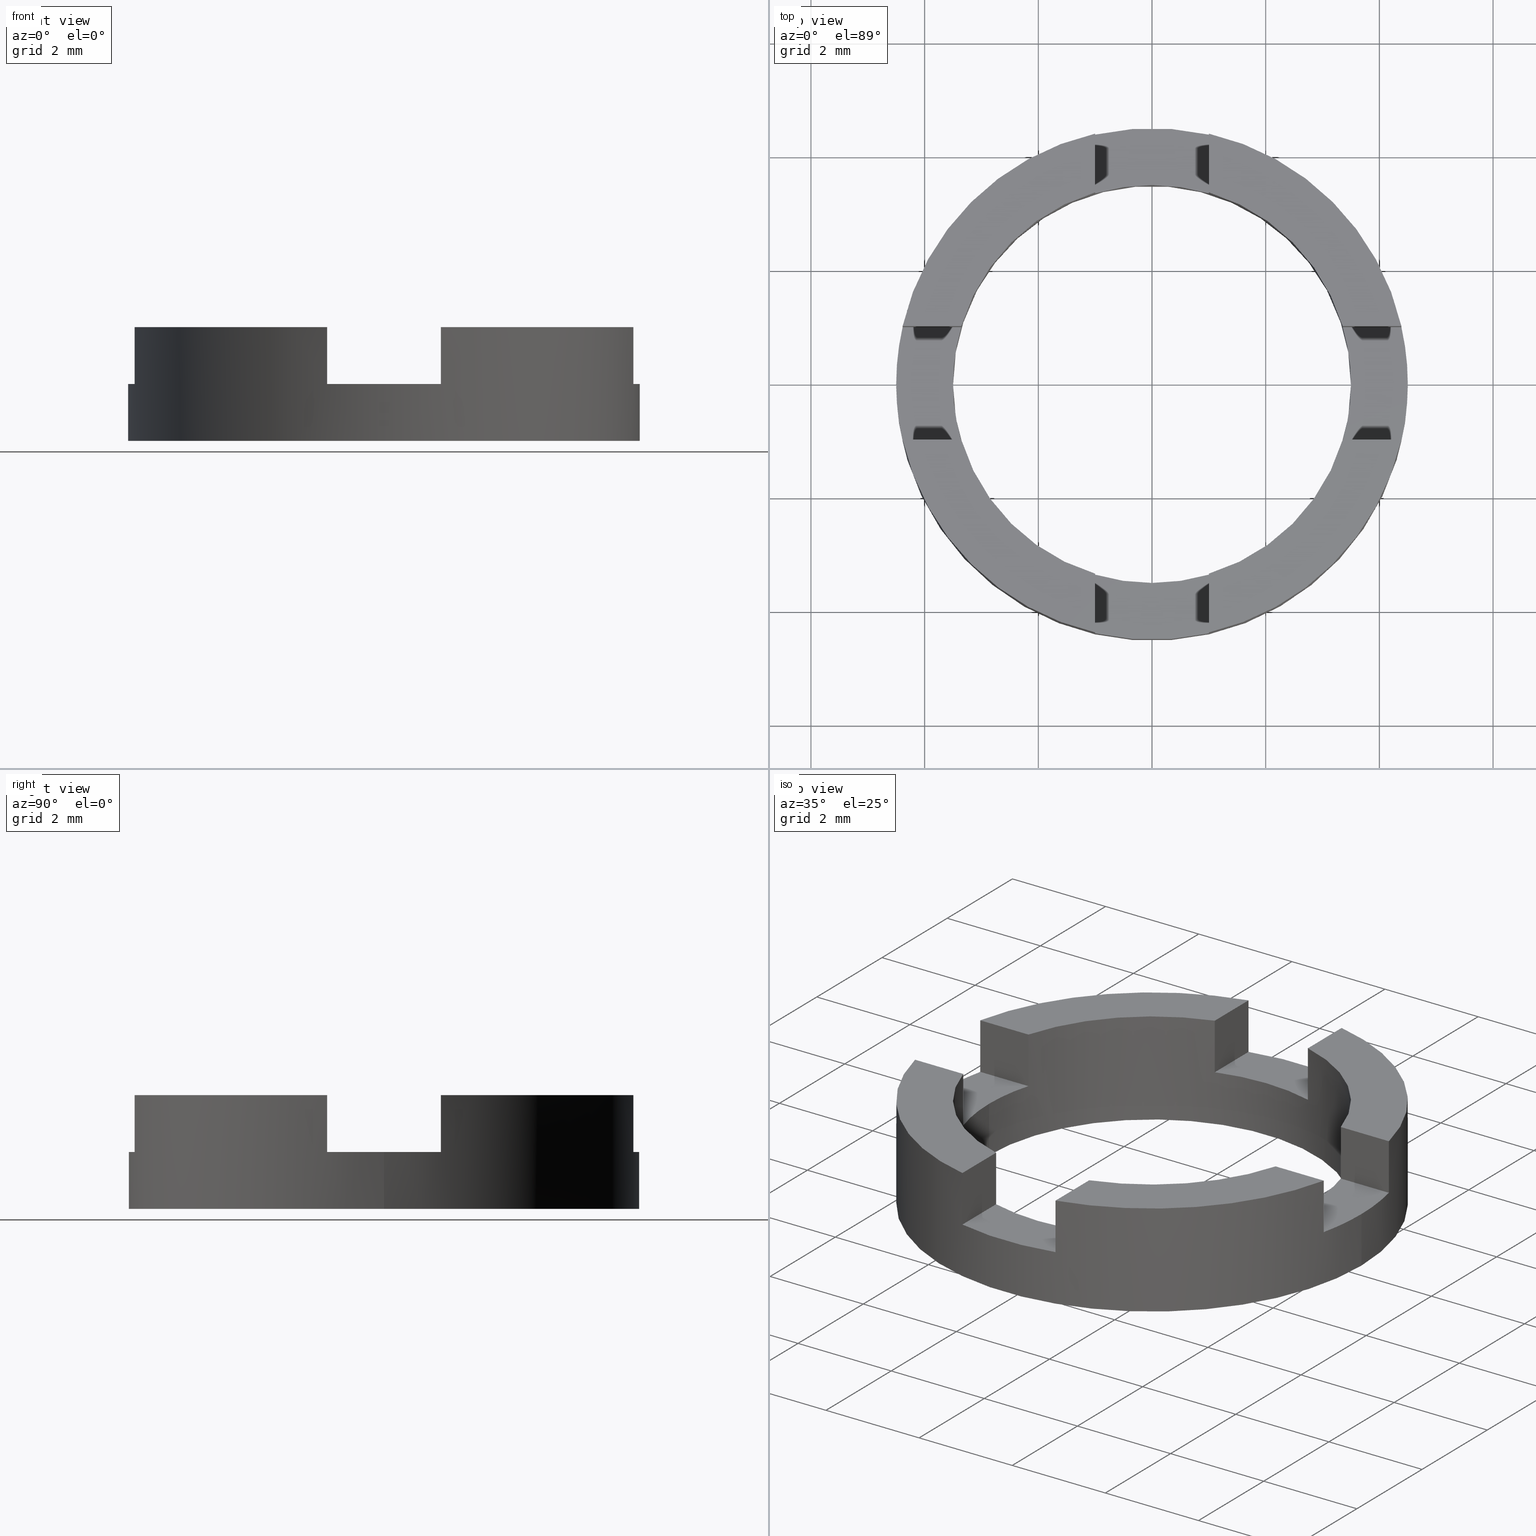
[diagram: canonical four-view strip — front | top / right | iso, engineering-drawing reading convention]
A machine part, canonical four-view strip (front | top / right | iso — engineering-drawing reading convention). The complete STEP part file that produces these views, byte-faithful:
ISO-10303-21;
HEADER;
FILE_DESCRIPTION (( 'STEP AP203' ),
    '1' );
FILE_NAME ('514024.step',
    '2024-12-24T07:07:19',
    ( '' ),
    ( '' ),
    'SwSTEP 2.0',
    'SolidWorks 2020',
    '' );
FILE_SCHEMA (( 'CONFIG_CONTROL_DESIGN' ));
ENDSEC;

DATA;
#1 = AXIS2_PLACEMENT_3D ( 'NONE', #775, #534, #224 ) ;
#2 = CARTESIAN_POINT ( 'NONE',  ( 0.000000000000000000, 0.000000000000000000, 1.000000000000000000 ) ) ;
#3 = DIRECTION ( 'NONE',  ( 0.000000000000000000, 0.000000000000000000, 1.000000000000000000 ) ) ;
#4 = APPROVAL ( #516, 'δָ��' ) ;
#5 = CARTESIAN_POINT ( 'NONE',  ( 3.354101966249671385, 1.000000000000045297, 2.000000000000000000 ) ) ;
#6 = ORIENTED_EDGE ( 'NONE', *, *, #497, .F. ) ;
#7 = CARTESIAN_POINT ( 'NONE',  ( 0.000000000000000000, 0.000000000000000000, 0.000000000000000000 ) ) ;
#8 = DIRECTION ( 'NONE',  ( 0.000000000000000000, 0.000000000000000000, 1.000000000000000000 ) ) ;
#9 = ORIENTED_EDGE ( 'NONE', *, *, #270, .T. ) ;
#10 = CIRCLE ( 'NONE', #609, 4.500000000000000000 ) ;
#11 = DIRECTION ( 'NONE',  ( 2.558646401551673950E-16, -1.000000000000000000, 0.000000000000000000 ) ) ;
#12 = ORIENTED_EDGE ( 'NONE', *, *, #728, .T. ) ;
#13 = DIRECTION ( 'NONE',  ( 1.000000000000000000, 0.000000000000000000, 0.000000000000000000 ) ) ;
#14 = CARTESIAN_POINT ( 'NONE',  ( -3.354101966249774858, 0.9999999999996977973, 2.000000000000000000 ) ) ;
#15 = ORIENTED_EDGE ( 'NONE', *, *, #717, .F. ) ;
#16 = EDGE_CURVE ( 'NONE', #642, #689, #493, .T. ) ;
#17 = COORDINATED_UNIVERSAL_TIME_OFFSET ( 8, 0, .AHEAD. ) ;
#18 = CARTESIAN_POINT ( 'NONE',  ( 4.387482193696071064, -0.9999999999999544809, 1.000000000000000000 ) ) ;
#19 = DIRECTION ( 'NONE',  ( -1.000000000000000000, -2.558646401551675429E-16, 0.000000000000000000 ) ) ;
#20 = ORIENTED_EDGE ( 'NONE', *, *, #303, .F. ) ;
#21 = DATE_AND_TIME ( #206, #110 ) ;
#22 = AXIS2_PLACEMENT_3D ( 'NONE', #163, #533, #231 ) ;
#23 = AXIS2_PLACEMENT_3D ( 'NONE', #72, #66, #244 ) ;
#24 = VERTEX_POINT ( 'NONE', #235 ) ;
#25 = EDGE_CURVE ( 'NONE', #383, #689, #608, .T. ) ;
#26 = DIRECTION ( 'NONE',  ( -1.000000000000000000, 0.000000000000000000, 0.000000000000000000 ) ) ;
#27 = ORIENTED_EDGE ( 'NONE', *, *, #220, .T. ) ;
#28 = EDGE_LOOP ( 'NONE', ( #584, #370, #783, #381, #400, #15 ) ) ;
#29 = LINE ( 'NONE', #154, #721 ) ;
#30 = ORIENTED_EDGE ( 'NONE', *, *, #181, .F. ) ;
#31 = VERTEX_POINT ( 'NONE', #51 ) ;
#32 = CARTESIAN_POINT ( 'NONE',  ( 2.805037895306198958, 1.000000000000045297, 1.000000000000000000 ) ) ;
#33 = DIRECTION ( 'NONE',  ( -1.000000000000000000, 0.000000000000000000, 0.000000000000000000 ) ) ;
#34 = ADVANCED_FACE ( 'NONE', ( #725 ), #420, .F. ) ;
#35 = ORIENTED_EDGE ( 'NONE', *, *, #243, .F. ) ;
#36 = AXIS2_PLACEMENT_3D ( 'NONE', #592, #166, #656 ) ;
#37 = CIRCLE ( 'NONE', #395, 3.500000000000000000 ) ;
#38 = DIRECTION ( 'NONE',  ( -1.000000000000000000, 0.000000000000000000, 0.000000000000000000 ) ) ;
#39 = DIRECTION ( 'NONE',  ( 0.000000000000000000, 1.000000000000000000, 0.000000000000000000 ) ) ;
#40 = DIRECTION ( 'NONE',  ( 0.000000000000000000, 0.000000000000000000, 1.000000000000000000 ) ) ;
#41 = DIRECTION ( 'NONE',  ( -1.279323200775837468E-16, 1.000000000000000000, -0.000000000000000000 ) ) ;
#42 = ORIENTED_EDGE ( 'NONE', *, *, #590, .F. ) ;
#43 = CARTESIAN_POINT ( 'NONE',  ( 0.000000000000000000, 0.000000000000000000, 1.000000000000000000 ) ) ;
#44 = ADVANCED_FACE ( 'NONE', ( #295 ), #716, .T. ) ;
#45 = FACE_OUTER_BOUND ( 'NONE', #217, .T. ) ;
#46 = VECTOR ( 'NONE', #294, 1000.000000000000000 ) ;
#47 = VECTOR ( 'NONE', #97, 1000.000000000000000 ) ;
#48 = DIRECTION ( 'NONE',  ( -0.000000000000000000, -0.000000000000000000, -1.000000000000000000 ) ) ;
#49 = EDGE_CURVE ( 'NONE', #704, #588, #664, .T. ) ;
#50 = EDGE_CURVE ( 'NONE', #302, #504, #117, .T. ) ;
#51 = CARTESIAN_POINT ( 'NONE',  ( 1.000000000000347278, -3.354101966249581235, 1.000000000000000000 ) ) ;
#52 = CARTESIAN_POINT ( 'NONE',  ( 3.354101966249671385, 1.000000000000045297, 1.000000000000000000 ) ) ;
#53 = DIRECTION ( 'NONE',  ( 0.000000000000000000, 0.000000000000000000, 1.000000000000000000 ) ) ;
#54 = DIRECTION ( 'NONE',  ( 0.000000000000000000, 0.000000000000000000, 1.000000000000000000 ) ) ;
#55 = CC_DESIGN_PERSON_AND_ORGANIZATION_ASSIGNMENT ( #566, #200, ( #487 ) ) ;
#56 = CARTESIAN_POINT ( 'NONE',  ( 3.354101966249698030, -0.9999999999999547029, 2.000000000000000000 ) ) ;
#57 = VECTOR ( 'NONE', #423, 1000.000000000000000 ) ;
#58 = VECTOR ( 'NONE', #369, 1000.000000000000000 ) ;
#59 = VECTOR ( 'NONE', #481, 1000.000000000000000 ) ;
#60 = DIRECTION ( 'NONE',  ( -1.000000000000000000, 0.000000000000000000, 0.000000000000000000 ) ) ;
#61 = EDGE_LOOP ( 'NONE', ( #149, #752, #500, #83 ) ) ;
#62 = DIRECTION ( 'NONE',  ( -0.000000000000000000, -0.000000000000000000, -1.000000000000000000 ) ) ;
#63 = CARTESIAN_POINT ( 'NONE',  ( -3.354101966249594557, -1.000000000000302203, 2.000000000000000000 ) ) ;
#64 = VERTEX_POINT ( 'NONE', #780 ) ;
#65 = EDGE_CURVE ( 'NONE', #363, #228, #233, .T. ) ;
#66 = DIRECTION ( 'NONE',  ( 0.000000000000000000, -0.000000000000000000, 1.000000000000000000 ) ) ;
#67 = PLANE ( 'NONE',  #280 ) ;
#68 = ORIENTED_EDGE ( 'NONE', *, *, #512, .T. ) ;
#69 = APPROVAL_ROLE ( '' ) ;
#70 = AXIS2_PLACEMENT_3D ( 'NONE', #305, #431, #503 ) ;
#71 = CC_DESIGN_APPROVAL ( #140, ( #487 ) ) ;
#72 = CARTESIAN_POINT ( 'NONE',  ( 0.000000000000000000, 0.000000000000000000, 1.000000000000000000 ) ) ;
#73 = DIRECTION ( 'NONE',  ( 0.000000000000000000, 0.000000000000000000, -1.000000000000000000 ) ) ;
#74 = VERTEX_POINT ( 'NONE', #540 ) ;
#75 = EDGE_CURVE ( 'NONE', #128, #678, #777, .T. ) ;
#76 = DIRECTION ( 'NONE',  ( 0.000000000000000000, 0.000000000000000000, 1.000000000000000000 ) ) ;
#77 = DIRECTION ( 'NONE',  ( 1.000000000000000000, 2.558646401551673950E-16, -0.000000000000000000 ) ) ;
#78 = VERTEX_POINT ( 'NONE', #119 ) ;
#79 = CARTESIAN_POINT ( 'NONE',  ( -0.9999999999996526112, -4.387482193696139454, 1.000000000000000000 ) ) ;
#80 = ORIENTED_EDGE ( 'NONE', *, *, #680, .T. ) ;
#81 = PERSON_AND_ORGANIZATION ( #241, #249 ) ;
#82 = EDGE_CURVE ( 'NONE', #412, #275, #720, .T. ) ;
#83 = ORIENTED_EDGE ( 'NONE', *, *, #757, .F. ) ;
#84 = CC_DESIGN_DATE_AND_TIME_ASSIGNMENT ( #455, #690, ( #660 ) ) ;
#85 = CYLINDRICAL_SURFACE ( 'NONE', #700, 4.500000000000000000 ) ;
#86 = ORIENTED_EDGE ( 'NONE', *, *, #705, .T. ) ;
#87 = DATE_TIME_ROLE ( 'creation_date' ) ;
#88 = VECTOR ( 'NONE', #778, 1000.000000000000000 ) ;
#89 = ORIENTED_EDGE ( 'NONE', *, *, #292, .T. ) ;
#90 = PLANE ( 'NONE',  #472 ) ;
#91 = ORIENTED_EDGE ( 'NONE', *, *, #562, .F. ) ;
#92 = ORIENTED_EDGE ( 'NONE', *, *, #65, .F. ) ;
#93 = CARTESIAN_POINT ( 'NONE',  ( 0.000000000000000000, 0.000000000000000000, 1.000000000000000000 ) ) ;
#94 = DIRECTION ( 'NONE',  ( 1.000000000000000000, 0.000000000000000000, -0.000000000000000000 ) ) ;
#95 = ORIENTED_EDGE ( 'NONE', *, *, #739, .F. ) ;
#96 = ORIENTED_EDGE ( 'NONE', *, *, #277, .T. ) ;
#97 = DIRECTION ( 'NONE',  ( 0.000000000000000000, 0.000000000000000000, 1.000000000000000000 ) ) ;
#98 = DIRECTION ( 'NONE',  ( 0.000000000000000000, 0.000000000000000000, 1.000000000000000000 ) ) ;
#99 = VECTOR ( 'NONE', #603, 1000.000000000000000 ) ;
#100 = AXIS2_PLACEMENT_3D ( 'NONE', #654, #713, #771 ) ;
#101 = LINE ( 'NONE', #585, #367 ) ;
#102 = CARTESIAN_POINT ( 'NONE',  ( 1.000000000000000222, 3.354101966249684708, 1.000000000000000000 ) ) ;
#103 = EDGE_CURVE ( 'NONE', #24, #574, #113, .T. ) ;
#104 = LINE ( 'NONE', #600, #538 ) ;
#105 = ADVANCED_FACE ( 'NONE', ( #45 ), #171, .F. ) ;
#106 = DIRECTION ( 'NONE',  ( 1.000000000000000000, 0.000000000000000000, 0.000000000000000000 ) ) ;
#107 = DIRECTION ( 'NONE',  ( 0.000000000000000000, 0.000000000000000000, -1.000000000000000000 ) ) ;
#108 = CARTESIAN_POINT ( 'NONE',  ( -4.500000000000000000, 0.000000000000000000, 2.000000000000000000 ) ) ;
#109 = CIRCLE ( 'NONE', #22, 4.500000000000000000 ) ;
#110 = LOCAL_TIME ( 15, 7, 19.00000000000000000, #758 ) ;
#111 = FACE_OUTER_BOUND ( 'NONE', #373, .T. ) ;
#112 = DIRECTION ( 'NONE',  ( -1.000000000000000000, 0.000000000000000000, -0.000000000000000000 ) ) ;
#113 = LINE ( 'NONE', #108, #747 ) ;
#114 = ADVANCED_FACE ( 'NONE', ( #662 ), #606, .F. ) ;
#115 = CC_DESIGN_PERSON_AND_ORGANIZATION_ASSIGNMENT ( #676, #433, ( #660 ) ) ;
#116 = CARTESIAN_POINT ( 'NONE',  ( -4.387482193696129684, 0.9999999999996975752, 2.000000000000000000 ) ) ;
#117 = LINE ( 'NONE', #543, #425 ) ;
#118 = DIRECTION ( 'NONE',  ( 0.000000000000000000, -0.000000000000000000, -1.000000000000000000 ) ) ;
#119 = CARTESIAN_POINT ( 'NONE',  ( 3.500000000000000000, 4.286263797015736595E-16, 1.000000000000000000 ) ) ;
#120 = CIRCLE ( 'NONE', #774, 4.500000000000000000 ) ;
#121 = CIRCLE ( 'NONE', #237, 4.500000000000000000 ) ;
#122 = CARTESIAN_POINT ( 'NONE',  ( 3.354101966249698030, -0.9999999999999547029, 1.000000000000000000 ) ) ;
#123 = FACE_OUTER_BOUND ( 'NONE', #61, .T. ) ;
#124 = ORIENTED_EDGE ( 'NONE', *, *, #477, .F. ) ;
#125 = ADVANCED_FACE ( 'NONE', ( #615 ), #567, .T. ) ;
#126 = DIRECTION ( 'NONE',  ( -1.000000000000000000, 0.000000000000000000, 0.000000000000000000 ) ) ;
#127 = LINE ( 'NONE', #440, #162 ) ;
#128 = VERTEX_POINT ( 'NONE', #18 ) ;
#129 = CARTESIAN_POINT ( 'NONE',  ( 3.500000000000000000, 4.286263797015736595E-16, 0.000000000000000000 ) ) ;
#130 = EDGE_CURVE ( 'NONE', #265, #745, #564, .T. ) ;
#131 = DIRECTION ( 'NONE',  ( -0.000000000000000000, -1.000000000000000000, -0.000000000000000000 ) ) ;
#132 = ORIENTED_EDGE ( 'NONE', *, *, #698, .T. ) ;
#133 = DATE_AND_TIME ( #266, #281 ) ;
#134 = CIRCLE ( 'NONE', #366, 3.500000000000000000 ) ;
#135 = AXIS2_PLACEMENT_3D ( 'NONE', #726, #435, #126 ) ;
#136 = CARTESIAN_POINT ( 'NONE',  ( 0.000000000000000000, 0.000000000000000000, 2.000000000000000000 ) ) ;
#137 = ORIENTED_EDGE ( 'NONE', *, *, #781, .T. ) ;
#138 = CARTESIAN_POINT ( 'NONE',  ( -4.387482193696129684, 0.9999999999996975752, 1.000000000000000000 ) ) ;
#139 = ORIENTED_EDGE ( 'NONE', *, *, #390, .T. ) ;
#140 = APPROVAL ( #326, 'δָ��' ) ;
#141 = PERSON_AND_ORGANIZATION ( #241, #249 ) ;
#142 = CARTESIAN_POINT ( 'NONE',  ( -0.9999999999999997780, 2.805037895305896978, 1.000000000000000000 ) ) ;
#143 = ORIENTED_EDGE ( 'NONE', *, *, #776, .F. ) ;
#144 = FACE_OUTER_BOUND ( 'NONE', #448, .T. ) ;
#145 = ORIENTED_EDGE ( 'NONE', *, *, #553, .F. ) ;
#146 = COORDINATED_UNIVERSAL_TIME_OFFSET ( 8, 0, .AHEAD. ) ;
#147 = ORIENTED_EDGE ( 'NONE', *, *, #626, .F. ) ;
#148 = CARTESIAN_POINT ( 'NONE',  ( 0.000000000000000000, 0.000000000000000000, 2.000000000000000000 ) ) ;
#149 = ORIENTED_EDGE ( 'NONE', *, *, #590, .T. ) ;
#150 = AXIS2_PLACEMENT_3D ( 'NONE', #339, #760, #663 ) ;
#151 = AXIS2_PLACEMENT_3D ( 'NONE', #240, #490, #13 ) ;
#152 = ORIENTED_EDGE ( 'NONE', *, *, #717, .T. ) ;
#153 = CARTESIAN_POINT ( 'NONE',  ( 2.805037895306198958, 1.000000000000045297, 1.000000000000000000 ) ) ;
#154 = CARTESIAN_POINT ( 'NONE',  ( -3.500000000000000000, 0.000000000000000000, 2.000000000000000000 ) ) ;
#155 = ORIENTED_EDGE ( 'NONE', *, *, #50, .F. ) ;
#156 = EDGE_LOOP ( 'NONE', ( #571, #464, #521, #675 ) ) ;
#157 = CARTESIAN_POINT ( 'NONE',  ( -0.9999999999996528333, -2.805037895306154105, 1.000000000000000000 ) ) ;
#158 = CARTESIAN_POINT ( 'NONE',  ( 0.000000000000000000, 0.000000000000000000, 1.000000000000000000 ) ) ;
#159 = EDGE_CURVE ( 'NONE', #221, #525, #246, .T. ) ;
#160 = DIRECTION ( 'NONE',  ( 0.000000000000000000, 0.000000000000000000, -1.000000000000000000 ) ) ;
#161 = FACE_BOUND ( 'NONE', #327, .T. ) ;
#162 = VECTOR ( 'NONE', #683, 1000.000000000000000 ) ;
#163 = CARTESIAN_POINT ( 'NONE',  ( 0.000000000000000000, 0.000000000000000000, 1.000000000000000000 ) ) ;
#164 = EDGE_CURVE ( 'NONE', #228, #689, #127, .T. ) ;
#165 = CARTESIAN_POINT ( 'NONE',  ( -0.9999999999996526112, -4.387482193696139454, 2.000000000000000000 ) ) ;
#166 = DIRECTION ( 'NONE',  ( 1.279323200775837468E-16, -1.000000000000000000, 0.000000000000000000 ) ) ;
#167 = CARTESIAN_POINT ( 'NONE',  ( 0.000000000000000000, 0.000000000000000000, 2.000000000000000000 ) ) ;
#168 = CARTESIAN_POINT ( 'NONE',  ( 0.000000000000000000, 0.000000000000000000, 2.000000000000000000 ) ) ;
#169 = LINE ( 'NONE', #218, #601 ) ;
#170 = CLOSED_SHELL ( 'NONE', ( #34, #285, #44, #480, #338, #414, #501, #125, #105, #332, #255, #545, #613, #434, #114, #403, #604, #365, #695, #619, #296 ) ) ;
#171 = CYLINDRICAL_SURFACE ( 'NONE', #573, 3.500000000000000000 ) ;
#172 = AXIS2_PLACEMENT_3D ( 'NONE', #158, #513, #33 ) ;
#173 = EDGE_CURVE ( 'NONE', #221, #228, #248, .T. ) ;
#174 = VECTOR ( 'NONE', #62, 1000.000000000000000 ) ;
#175 = PLANE ( 'NONE',  #355 ) ;
#176 = ORIENTED_EDGE ( 'NONE', *, *, #595, .T. ) ;
#177 = CARTESIAN_POINT ( 'NONE',  ( 1.000000000000000222, 4.387482193696060406, 2.000000000000000000 ) ) ;
#178 = DIRECTION ( 'NONE',  ( 1.000000000000000000, 0.000000000000000000, -0.000000000000000000 ) ) ;
#179 = DIRECTION ( 'NONE',  ( -0.000000000000000000, -0.000000000000000000, -1.000000000000000000 ) ) ;
#180 = EDGE_LOOP ( 'NONE', ( #630, #80, #30, #143 ) ) ;
#181 = EDGE_CURVE ( 'NONE', #74, #580, #495, .T. ) ;
#182 = VECTOR ( 'NONE', #620, 1000.000000000000000 ) ;
#183 = CIRCLE ( 'NONE', #473, 4.500000000000000000 ) ;
#184 = CARTESIAN_POINT ( 'NONE',  ( 1.000000000000347500, -4.387482193695982247, 2.000000000000000000 ) ) ;
#185 = EDGE_CURVE ( 'NONE', #525, #394, #300, .T. ) ;
#186 = DIRECTION ( 'NONE',  ( 0.000000000000000000, -0.000000000000000000, -1.000000000000000000 ) ) ;
#187 = EDGE_LOOP ( 'NONE', ( #317, #428, #445, #616 ) ) ;
#188 = EDGE_CURVE ( 'NONE', #288, #525, #201, .T. ) ;
#189 = DIRECTION ( 'NONE',  ( 1.000000000000000000, 2.558646401551673950E-16, 0.000000000000000000 ) ) ;
#190 = ORIENTED_EDGE ( 'NONE', *, *, #103, .T. ) ;
#191 = CARTESIAN_POINT ( 'NONE',  ( 0.000000000000000000, 0.000000000000000000, 1.000000000000000000 ) ) ;
#192 = DIRECTION ( 'NONE',  ( -1.000000000000000000, 0.000000000000000000, 0.000000000000000000 ) ) ;
#193 = PRODUCT_DEFINITION_SHAPE ( 'NONE', 'NONE',  #487 ) ;
#194 = ORIENTED_EDGE ( 'NONE', *, *, #243, .T. ) ;
#195 = EDGE_CURVE ( 'NONE', #743, #754, #236, .T. ) ;
#196 = DIRECTION ( 'NONE',  ( -0.000000000000000000, -0.000000000000000000, -1.000000000000000000 ) ) ;
#197 = ORIENTED_EDGE ( 'NONE', *, *, #474, .T. ) ;
#198 = AXIS2_PLACEMENT_3D ( 'NONE', #652, #349, #286 ) ;
#199 = LOCAL_TIME ( 15, 7, 19.00000000000000000, #328 ) ;
#200 = PERSON_AND_ORGANIZATION_ROLE ( 'creator' ) ;
#201 = LINE ( 'NONE', #749, #227 ) ;
#202 = ORIENTED_EDGE ( 'NONE', *, *, #769, .T. ) ;
#203 = SECURITY_CLASSIFICATION_LEVEL ( 'unclassified' ) ;
#204 = DIRECTION ( 'NONE',  ( 1.000000000000000000, 0.000000000000000000, 0.000000000000000000 ) ) ;
#205 = ORIENTED_EDGE ( 'NONE', *, *, #159, .F. ) ;
#206 = CALENDAR_DATE ( 2024, 24, 12 ) ;
#207 = VERTEX_POINT ( 'NONE', #14 ) ;
#208 = DIRECTION ( 'NONE',  ( 0.000000000000000000, 0.000000000000000000, 1.000000000000000000 ) ) ;
#209 = ORIENTED_EDGE ( 'NONE', *, *, #705, .F. ) ;
#210 = ORIENTED_EDGE ( 'NONE', *, *, #583, .F. ) ;
#211 = EDGE_CURVE ( 'NONE', #275, #628, #254, .T. ) ;
#212 = PLANE ( 'NONE',  #392 ) ;
#213 = DIRECTION ( 'NONE',  ( 0.000000000000000000, -0.000000000000000000, 1.000000000000000000 ) ) ;
#214 = VERTEX_POINT ( 'NONE', #742 ) ;
#215 = AXIS2_PLACEMENT_3D ( 'NONE', #570, #467, #19 ) ;
#216 = LOCAL_TIME ( 15, 7, 19.00000000000000000, #17 ) ;
#217 = EDGE_LOOP ( 'NONE', ( #396, #750, #124, #96, #147, #86, #557, #337, #6, #636, #139, #342 ) ) ;
#218 = CARTESIAN_POINT ( 'NONE',  ( 1.000000000000000222, 2.805037895305897866, 2.000000000000000000 ) ) ;
#219 = CARTESIAN_POINT ( 'NONE',  ( 1.000000000000347500, -4.387482193695982247, 2.000000000000000000 ) ) ;
#220 = EDGE_CURVE ( 'NONE', #302, #128, #682, .T. ) ;
#221 = VERTEX_POINT ( 'NONE', #258 ) ;
#222 = DIRECTION ( 'NONE',  ( -1.000000000000000000, -2.558646401551675429E-16, 0.000000000000000000 ) ) ;
#223 = DIRECTION ( 'NONE',  ( -1.000000000000000000, 0.000000000000000000, 0.000000000000000000 ) ) ;
#224 = DIRECTION ( 'NONE',  ( 1.000000000000000000, 0.000000000000000000, -0.000000000000000000 ) ) ;
#225 = EDGE_CURVE ( 'NONE', #214, #745, #637, .T. ) ;
#226 = VECTOR ( 'NONE', #599, 1000.000000000000000 ) ;
#227 = VECTOR ( 'NONE', #77, 1000.000000000000000 ) ;
#228 = VERTEX_POINT ( 'NONE', #385 ) ;
#229 = DIRECTION ( 'NONE',  ( 0.000000000000000000, 0.000000000000000000, 1.000000000000000000 ) ) ;
#230 = CARTESIAN_POINT ( 'NONE',  ( 0.000000000000000000, 0.000000000000000000, 2.000000000000000000 ) ) ;
#231 = DIRECTION ( 'NONE',  ( -1.000000000000000000, 0.000000000000000000, 0.000000000000000000 ) ) ;
#232 = LINE ( 'NONE', #315, #379 ) ;
#233 = LINE ( 'NONE', #482, #57 ) ;
#234 = FACE_OUTER_BOUND ( 'NONE', #252, .T. ) ;
#235 = CARTESIAN_POINT ( 'NONE',  ( -4.500000000000000000, 0.000000000000000000, 1.000000000000000000 ) ) ;
#236 = CIRCLE ( 'NONE', #70, 3.500000000000000000 ) ;
#237 = AXIS2_PLACEMENT_3D ( 'NONE', #191, #424, #368 ) ;
#238 = DIRECTION ( 'NONE',  ( -0.000000000000000000, -0.000000000000000000, -1.000000000000000000 ) ) ;
#239 = EDGE_LOOP ( 'NONE', ( #68, #740, #457, #535, #569, #759 ) ) ;
#240 = CARTESIAN_POINT ( 'NONE',  ( 0.000000000000000000, 0.000000000000000000, 1.000000000000000000 ) ) ;
#241 = PERSON ( 'δָ��', 'δָ��', 'δָ��', ('δָ��'), ('δָ��'), ('δָ��') ) ;
#242 = ORIENTED_EDGE ( 'NONE', *, *, #270, .F. ) ;
#243 = EDGE_CURVE ( 'NONE', #574, #504, #10, .T. ) ;
#244 = DIRECTION ( 'NONE',  ( 1.000000000000000000, 0.000000000000000000, 0.000000000000000000 ) ) ;
#245 = ORIENTED_EDGE ( 'NONE', *, *, #130, .T. ) ;
#246 = LINE ( 'NONE', #63, #182 ) ;
#247 = ORIENTED_EDGE ( 'NONE', *, *, #390, .F. ) ;
#248 = CIRCLE ( 'NONE', #260, 3.500000000000000000 ) ;
#249 = ORGANIZATION ( 'δָ��', 'δָ��', '' ) ;
#250 = CARTESIAN_POINT ( 'NONE',  ( -0.9999999999996526112, -4.387482193696139454, 2.000000000000000000 ) ) ;
#251 = CARTESIAN_POINT ( 'NONE',  ( 1.000000000000000222, 4.387482193696060406, 2.000000000000000000 ) ) ;
#252 = EDGE_LOOP ( 'NONE', ( #697, #634, #692, #391 ) ) ;
#253 = CARTESIAN_POINT ( 'NONE',  ( -0.9999999999999997780, 2.805037895305896978, 1.000000000000000000 ) ) ;
#254 = LINE ( 'NONE', #499, #510 ) ;
#255 = ADVANCED_FACE ( 'NONE', ( #123 ), #67, .F. ) ;
#256 = ORIENTED_EDGE ( 'NONE', *, *, #626, .T. ) ;
#257 = CARTESIAN_POINT ( 'NONE',  ( 0.000000000000000000, 0.000000000000000000, 0.000000000000000000 ) ) ;
#258 = CARTESIAN_POINT ( 'NONE',  ( -3.354101966249594557, -1.000000000000302203, 2.000000000000000000 ) ) ;
#259 = ORIENTED_EDGE ( 'NONE', *, *, #211, .F. ) ;
#260 = AXIS2_PLACEMENT_3D ( 'NONE', #136, #627, #321 ) ;
#261 = DIRECTION ( 'NONE',  ( -1.000000000000000000, -1.279323200775836975E-16, -0.000000000000000000 ) ) ;
#262 = ORIENTED_EDGE ( 'NONE', *, *, #25, .T. ) ;
#263 = VECTOR ( 'NONE', #222, 1000.000000000000000 ) ;
#264 = PERSON_AND_ORGANIZATION ( #241, #249 ) ;
#265 = VERTEX_POINT ( 'NONE', #677 ) ;
#266 = CALENDAR_DATE ( 2024, 24, 12 ) ;
#267 = LINE ( 'NONE', #461, #764 ) ;
#268 = EDGE_LOOP ( 'NONE', ( #202, #432, #209, #9 ) ) ;
#269 = APPROVAL_ROLE ( '' ) ;
#270 = EDGE_CURVE ( 'NONE', #441, #265, #375, .T. ) ;
#271 = ORIENTED_EDGE ( 'NONE', *, *, #277, .F. ) ;
#272 = CARTESIAN_POINT ( 'NONE',  ( 1.000000000000000222, 2.805037895305897866, 1.000000000000000000 ) ) ;
#273 = DIRECTION ( 'NONE',  ( 0.000000000000000000, 0.000000000000000000, 1.000000000000000000 ) ) ;
#274 = ORIENTED_EDGE ( 'NONE', *, *, #670, .T. ) ;
#275 = VERTEX_POINT ( 'NONE', #138 ) ;
#276 = LINE ( 'NONE', #361, #46 ) ;
#277 = EDGE_CURVE ( 'NONE', #762, #341, #329, .T. ) ;
#278 = PLANE ( 'NONE',  #36 ) ;
#279 = AXIS2_PLACEMENT_3D ( 'NONE', #299, #486, #106 ) ;
#280 = AXIS2_PLACEMENT_3D ( 'NONE', #559, #11, #189 ) ;
#281 = LOCAL_TIME ( 15, 7, 19.00000000000000000, #318 ) ;
#282 = EDGE_LOOP ( 'NONE', ( #458, #763, #145, #612 ) ) ;
#283 = CARTESIAN_POINT ( 'NONE',  ( -3.354101966249594557, -1.000000000000302203, 1.000000000000000000 ) ) ;
#284 = DIRECTION ( 'NONE',  ( 0.000000000000000000, 0.000000000000000000, 1.000000000000000000 ) ) ;
#285 = ADVANCED_FACE ( 'NONE', ( #450 ), #85, .T. ) ;
#286 = DIRECTION ( 'NONE',  ( 1.000000000000000000, 0.000000000000000000, -0.000000000000000000 ) ) ;
#287 = LINE ( 'NONE', #408, #547 ) ;
#288 = VERTEX_POINT ( 'NONE', #524 ) ;
#289 = DIRECTION ( 'NONE',  ( 0.000000000000000000, 0.000000000000000000, 1.000000000000000000 ) ) ;
#290 = DIRECTION ( 'NONE',  ( -0.000000000000000000, -0.000000000000000000, -1.000000000000000000 ) ) ;
#291 = PLANE ( 'NONE',  #575 ) ;
#292 = EDGE_CURVE ( 'NONE', #491, #628, #120, .T. ) ;
#293 = DIRECTION ( 'NONE',  ( -1.000000000000000000, 0.000000000000000000, 0.000000000000000000 ) ) ;
#294 = DIRECTION ( 'NONE',  ( -1.279323200775837468E-16, 1.000000000000000000, -0.000000000000000000 ) ) ;
#295 = FACE_OUTER_BOUND ( 'NONE', #519, .T. ) ;
#296 = ADVANCED_FACE ( 'NONE', ( #335 ), #340, .T. ) ;
#297 = PLANE ( 'NONE',  #301 ) ;
#298 = VECTOR ( 'NONE', #53, 1000.000000000000000 ) ;
#299 = CARTESIAN_POINT ( 'NONE',  ( 0.000000000000000000, 0.000000000000000000, 2.000000000000000000 ) ) ;
#300 = CIRCLE ( 'NONE', #494, 3.500000000000000000 ) ;
#301 = AXIS2_PLACEMENT_3D ( 'NONE', #253, #60, #54 ) ;
#302 = VERTEX_POINT ( 'NONE', #685 ) ;
#303 = EDGE_CURVE ( 'NONE', #64, #383, #528, .T. ) ;
#304 = APPROVAL ( #679, 'δָ��' ) ;
#305 = CARTESIAN_POINT ( 'NONE',  ( 0.000000000000000000, 0.000000000000000000, 0.000000000000000000 ) ) ;
#306 = ORIENTED_EDGE ( 'NONE', *, *, #617, .F. ) ;
#307 = LINE ( 'NONE', #374, #174 ) ;
#308 = VERTEX_POINT ( 'NONE', #456 ) ;
#309 = DIRECTION ( 'NONE',  ( -1.000000000000000000, 0.000000000000000000, 0.000000000000000000 ) ) ;
#310 = EDGE_LOOP ( 'NONE', ( #376, #454, #655, #20 ) ) ;
#311 = AXIS2_PLACEMENT_3D ( 'NONE', #230, #290, #293 ) ;
#312 = AXIS2_PLACEMENT_3D ( 'NONE', #751, #273, #204 ) ;
#313 = VECTOR ( 'NONE', #741, 1000.000000000000000 ) ;
#314 = EDGE_CURVE ( 'NONE', #308, #588, #712, .T. ) ;
#315 = CARTESIAN_POINT ( 'NONE',  ( 2.805037895306199403, -0.9999999999999547029, 2.000000000000000000 ) ) ;
#316 = DIRECTION ( 'NONE',  ( 1.000000000000000000, 0.000000000000000000, 0.000000000000000000 ) ) ;
#317 = ORIENTED_EDGE ( 'NONE', *, *, #670, .F. ) ;
#318 = COORDINATED_UNIVERSAL_TIME_OFFSET ( 8, 0, .AHEAD. ) ;
#319 = PRODUCT ( '514024', '514024', '', ( #579 ) ) ;
#320 = APPROVAL_ROLE ( '' ) ;
#321 = DIRECTION ( 'NONE',  ( 1.000000000000000000, 0.000000000000000000, 0.000000000000000000 ) ) ;
#322 = ORIENTED_EDGE ( 'NONE', *, *, #195, .T. ) ;
#323 = PERSON_AND_ORGANIZATION ( #241, #249 ) ;
#324 = DIRECTION ( 'NONE',  ( 0.000000000000000000, 0.000000000000000000, -1.000000000000000000 ) ) ;
#325 = ORIENTED_EDGE ( 'NONE', *, *, #303, .T. ) ;
#326 = APPROVAL_STATUS ( 'not_yet_approved' ) ;
#327 = EDGE_LOOP ( 'NONE', ( #322, #132 ) ) ;
#328 = COORDINATED_UNIVERSAL_TIME_OFFSET ( 8, 0, .AHEAD. ) ;
#329 = CIRCLE ( 'NONE', #312, 3.500000000000000000 ) ;
#330 = CARTESIAN_POINT ( 'NONE',  ( 0.000000000000000000, 0.000000000000000000, 2.000000000000000000 ) ) ;
#331 = VERTEX_POINT ( 'NONE', #219 ) ;
#332 = ADVANCED_FACE ( 'NONE', ( #644 ), #691, .F. ) ;
#333 = ORIENTED_EDGE ( 'NONE', *, *, #359, .F. ) ;
#334 = EDGE_CURVE ( 'NONE', #214, #762, #387, .T. ) ;
#335 = FACE_OUTER_BOUND ( 'NONE', #268, .T. ) ;
#336 = EDGE_LOOP ( 'NONE', ( #546, #730, #597, #451, #152, #360, #646, #768, #582, #245, #418, #197 ) ) ;
#337 = ORIENTED_EDGE ( 'NONE', *, *, #359, .T. ) ;
#338 = ADVANCED_FACE ( 'NONE', ( #144 ), #382, .T. ) ;
#339 = CARTESIAN_POINT ( 'NONE',  ( 0.000000000000000000, 0.000000000000000000, 2.000000000000000000 ) ) ;
#340 = PLANE ( 'NONE',  #377 ) ;
#341 = VERTEX_POINT ( 'NONE', #577 ) ;
#342 = ORIENTED_EDGE ( 'NONE', *, *, #698, .F. ) ;
#343 = CARTESIAN_POINT ( 'NONE',  ( 0.000000000000000000, 0.000000000000000000, 1.000000000000000000 ) ) ;
#344 = DIRECTION ( 'NONE',  ( 1.000000000000000000, 0.000000000000000000, 0.000000000000000000 ) ) ;
#345 = CIRCLE ( 'NONE', #622, 3.500000000000000000 ) ;
#346 = CC_DESIGN_PERSON_AND_ORGANIZATION_ASSIGNMENT ( #389, #446, ( #319 ) ) ;
#347 = CC_DESIGN_SECURITY_CLASSIFICATION ( #660, ( #561 ) ) ;
#348 = LINE ( 'NONE', #648, #47 ) ;
#349 = DIRECTION ( 'NONE',  ( 0.000000000000000000, 0.000000000000000000, 1.000000000000000000 ) ) ;
#350 = CARTESIAN_POINT ( 'NONE',  ( 0.000000000000000000, 0.000000000000000000, 1.000000000000000000 ) ) ;
#351 = CARTESIAN_POINT ( 'NONE',  ( -2.805037895305852569, 0.9999999999996979083, 1.000000000000000000 ) ) ;
#352 = LINE ( 'NONE', #594, #591 ) ;
#353 = EDGE_CURVE ( 'NONE', #491, #386, #267, .T. ) ;
#354 = AXIS2_PLACEMENT_3D ( 'NONE', #330, #393, #94 ) ;
#355 = AXIS2_PLACEMENT_3D ( 'NONE', #157, #419, #719 ) ;
#356 = DIRECTION ( 'NONE',  ( -1.000000000000000000, 0.000000000000000000, 0.000000000000000000 ) ) ;
#357 = DIRECTION ( 'NONE',  ( 0.000000000000000000, 0.000000000000000000, -1.000000000000000000 ) ) ;
#358 = FACE_OUTER_BOUND ( 'NONE', #156, .T. ) ;
#359 = EDGE_CURVE ( 'NONE', #386, #207, #345, .T. ) ;
#360 = ORIENTED_EDGE ( 'NONE', *, *, #211, .T. ) ;
#361 = CARTESIAN_POINT ( 'NONE',  ( 1.000000000000347278, -2.805037895306153217, 1.000000000000000000 ) ) ;
#362 = UNCERTAINTY_MEASURE_WITH_UNIT (LENGTH_MEASURE( 1.000000000000000082E-05 ), #430, 'distance_accuracy_value', 'NONE');
#363 = VERTEX_POINT ( 'NONE', #708 ) ;
#364 = CARTESIAN_POINT ( 'NONE',  ( -4.387482193695992017, -1.000000000000302425, 2.000000000000000000 ) ) ;
#365 = ADVANCED_FACE ( 'NONE', ( #402 ), #90, .F. ) ;
#366 = AXIS2_PLACEMENT_3D ( 'NONE', #350, #107, #223 ) ;
#367 = VECTOR ( 'NONE', #782, 1000.000000000000000 ) ;
#368 = DIRECTION ( 'NONE',  ( -1.000000000000000000, 0.000000000000000000, 0.000000000000000000 ) ) ;
#369 = DIRECTION ( 'NONE',  ( 0.000000000000000000, 0.000000000000000000, 1.000000000000000000 ) ) ;
#370 = ORIENTED_EDGE ( 'NONE', *, *, #188, .T. ) ;
#371 = ORIENTED_EDGE ( 'NONE', *, *, #617, .T. ) ;
#372 = DIRECTION ( 'NONE',  ( 1.000000000000000000, 0.000000000000000000, 0.000000000000000000 ) ) ;
#373 = EDGE_LOOP ( 'NONE', ( #35, #505 ) ) ;
#374 = CARTESIAN_POINT ( 'NONE',  ( -0.9999999999999997780, 4.387482193696060406, 2.000000000000000000 ) ) ;
#375 = LINE ( 'NONE', #444, #748 ) ;
#376 = ORIENTED_EDGE ( 'NONE', *, *, #553, .T. ) ;
#377 = AXIS2_PLACEMENT_3D ( 'NONE', #581, #213, #767 ) ;
#378 = APPROVAL_DATE_TIME ( #133, #304 ) ;
#379 = VECTOR ( 'NONE', #673, 1000.000000000000000 ) ;
#380 = CARTESIAN_POINT ( 'NONE',  ( 0.000000000000000000, 0.000000000000000000, 1.000000000000000000 ) ) ;
#381 = ORIENTED_EDGE ( 'NONE', *, *, #641, .T. ) ;
#382 = PLANE ( 'NONE',  #354 ) ;
#383 = VERTEX_POINT ( 'NONE', #79 ) ;
#384 = PERSON_AND_ORGANIZATION_ROLE ( 'creator' ) ;
#385 = CARTESIAN_POINT ( 'NONE',  ( -0.9999999999996528333, -3.354101966249788180, 2.000000000000000000 ) ) ;
#386 = VERTEX_POINT ( 'NONE', #703 ) ;
#387 = LINE ( 'NONE', #529, #460 ) ;
#388 = ORIENTED_EDGE ( 'NONE', *, *, #16, .T. ) ;
#389 = PERSON_AND_ORGANIZATION ( #241, #249 ) ;
#390 = EDGE_CURVE ( 'NONE', #394, #743, #29, .T. ) ;
#391 = ORIENTED_EDGE ( 'NONE', *, *, #25, .F. ) ;
#392 = AXIS2_PLACEMENT_3D ( 'NONE', #93, #766, #112 ) ;
#393 = DIRECTION ( 'NONE',  ( 0.000000000000000000, 0.000000000000000000, 1.000000000000000000 ) ) ;
#394 = VERTEX_POINT ( 'NONE', #649 ) ;
#395 = AXIS2_PLACEMENT_3D ( 'NONE', #7, #618, #488 ) ;
#396 = ORIENTED_EDGE ( 'NONE', *, *, #595, .F. ) ;
#397 = CARTESIAN_POINT ( 'NONE',  ( 0.000000000000000000, 0.000000000000000000, 0.000000000000000000 ) ) ;
#398 = DIRECTION ( 'NONE',  ( -0.000000000000000000, -0.000000000000000000, -1.000000000000000000 ) ) ;
#399 = ORIENTED_EDGE ( 'NONE', *, *, #195, .F. ) ;
#400 = ORIENTED_EDGE ( 'NONE', *, *, #82, .T. ) ;
#401 = DIRECTION ( 'NONE',  ( 1.000000000000000000, -0.000000000000000000, 0.000000000000000000 ) ) ;
#402 = FACE_OUTER_BOUND ( 'NONE', #239, .T. ) ;
#403 = ADVANCED_FACE ( 'NONE', ( #586 ), #278, .F. ) ;
#404 = CARTESIAN_POINT ( 'NONE',  ( 3.354101966249698030, -0.9999999999999547029, 2.000000000000000000 ) ) ;
#405 = PLANE ( 'NONE',  #198 ) ;
#406 = VECTOR ( 'NONE', #605, 1000.000000000000000 ) ;
#407 = APPROVAL_PERSON_ORGANIZATION ( #264, #4, #269 ) ;
#408 = CARTESIAN_POINT ( 'NONE',  ( 4.387482193696050636, 1.000000000000045519, 2.000000000000000000 ) ) ;
#409 = ORIENTED_EDGE ( 'NONE', *, *, #75, .T. ) ;
#410 = EDGE_CURVE ( 'NONE', #31, #363, #483, .T. ) ;
#411 = CARTESIAN_POINT ( 'NONE',  ( -3.354101966249774858, 0.9999999999996977973, 1.000000000000000000 ) ) ;
#412 = VERTEX_POINT ( 'NONE', #411 ) ;
#413 = PLANE ( 'NONE',  #1 ) ;
#414 = ADVANCED_FACE ( 'NONE', ( #476 ), #413, .T. ) ;
#415 = AXIS2_PLACEMENT_3D ( 'NONE', #738, #427, #192 ) ;
#416 = DIRECTION ( 'NONE',  ( 1.000000000000000000, 2.558646401551673950E-16, -0.000000000000000000 ) ) ;
#417 = CIRCLE ( 'NONE', #151, 4.500000000000000000 ) ;
#418 = ORIENTED_EDGE ( 'NONE', *, *, #225, .F. ) ;
#419 = DIRECTION ( 'NONE',  ( -1.000000000000000000, -1.279323200775837961E-16, 0.000000000000000000 ) ) ;
#420 = CYLINDRICAL_SURFACE ( 'NONE', #311, 3.500000000000000000 ) ;
#421 = EDGE_CURVE ( 'NONE', #704, #128, #715, .T. ) ;
#422 = FACE_OUTER_BOUND ( 'NONE', #180, .T. ) ;
#423 = DIRECTION ( 'NONE',  ( 0.000000000000000000, 0.000000000000000000, 1.000000000000000000 ) ) ;
#424 = DIRECTION ( 'NONE',  ( 0.000000000000000000, -0.000000000000000000, -1.000000000000000000 ) ) ;
#425 = VECTOR ( 'NONE', #489, 1000.000000000000000 ) ;
#426 = AXIS2_PLACEMENT_3D ( 'NONE', #744, #98, #344 ) ;
#427 = DIRECTION ( 'NONE',  ( 0.000000000000000000, 0.000000000000000000, -1.000000000000000000 ) ) ;
#428 = ORIENTED_EDGE ( 'NONE', *, *, #314, .F. ) ;
#429 = APPROVAL_PERSON_ORGANIZATION ( #323, #304, #69 ) ;
#430 =( LENGTH_UNIT ( ) NAMED_UNIT ( * ) SI_UNIT ( .MILLI., .METRE. ) );
#431 = DIRECTION ( 'NONE',  ( 0.000000000000000000, 0.000000000000000000, 1.000000000000000000 ) ) ;
#432 = ORIENTED_EDGE ( 'NONE', *, *, #181, .T. ) ;
#433 = PERSON_AND_ORGANIZATION_ROLE ( 'classification_officer' ) ;
#434 = ADVANCED_FACE ( 'NONE', ( #536 ), #471, .F. ) ;
#435 = DIRECTION ( 'NONE',  ( 0.000000000000000000, 0.000000000000000000, -1.000000000000000000 ) ) ;
#436 = DIRECTION ( 'NONE',  ( -1.000000000000000000, 0.000000000000000000, -0.000000000000000000 ) ) ;
#437 = ORIENTED_EDGE ( 'NONE', *, *, #49, .T. ) ;
#438 = DIRECTION ( 'NONE',  ( -0.000000000000000000, -0.000000000000000000, -1.000000000000000000 ) ) ;
#439 = EDGE_CURVE ( 'NONE', #514, #78, #134, .T. ) ;
#440 = CARTESIAN_POINT ( 'NONE',  ( -0.9999999999996528333, -2.805037895306154105, 2.000000000000000000 ) ) ;
#441 = VERTEX_POINT ( 'NONE', #102 ) ;
#442 = AXIS2_PLACEMENT_3D ( 'NONE', #623, #447, #316 ) ;
#443 = CIRCLE ( 'NONE', #765, 3.500000000000000000 ) ;
#444 = CARTESIAN_POINT ( 'NONE',  ( 1.000000000000000222, 2.805037895305897866, 1.000000000000000000 ) ) ;
#445 = ORIENTED_EDGE ( 'NONE', *, *, #452, .F. ) ;
#446 = PERSON_AND_ORGANIZATION_ROLE ( 'design_owner' ) ;
#447 = DIRECTION ( 'NONE',  ( 0.000000000000000000, 0.000000000000000000, 1.000000000000000000 ) ) ;
#448 = EDGE_LOOP ( 'NONE', ( #462, #509, #42, #388 ) ) ;
#449 = CALENDAR_DATE ( 2024, 24, 12 ) ;
#450 = FACE_OUTER_BOUND ( 'NONE', #336, .T. ) ;
#451 = ORIENTED_EDGE ( 'NONE', *, *, #103, .F. ) ;
#452 = EDGE_CURVE ( 'NONE', #331, #308, #352, .T. ) ;
#453 = APPLICATION_PROTOCOL_DEFINITION ( 'international standard', 'config_control_design', 1994, #522 ) ;
#454 = ORIENTED_EDGE ( 'NONE', *, *, #410, .T. ) ;
#455 = DATE_AND_TIME ( #449, #199 ) ;
#456 = CARTESIAN_POINT ( 'NONE',  ( 1.000000000000347278, -3.354101966249581235, 2.000000000000000000 ) ) ;
#457 = ORIENTED_EDGE ( 'NONE', *, *, #739, .T. ) ;
#458 = ORIENTED_EDGE ( 'NONE', *, *, #452, .T. ) ;
#459 = CARTESIAN_POINT ( 'NONE',  ( -2.805037895305851681, -1.000000000000301981, 2.000000000000000000 ) ) ;
#460 = VECTOR ( 'NONE', #261, 1000.000000000000000 ) ;
#461 = CARTESIAN_POINT ( 'NONE',  ( -0.9999999999999997780, 2.805037895305896978, 2.000000000000000000 ) ) ;
#462 = ORIENTED_EDGE ( 'NONE', *, *, #164, .F. ) ;
#463 = LOCAL_TIME ( 15, 7, 19.00000000000000000, #146 ) ;
#464 = ORIENTED_EDGE ( 'NONE', *, *, #477, .T. ) ;
#465 = EDGE_CURVE ( 'NONE', #560, #302, #109, .T. ) ;
#466 = CARTESIAN_POINT ( 'NONE',  ( -4.500000000000000000, 0.000000000000000000, 0.000000000000000000 ) ) ;
#467 = DIRECTION ( 'NONE',  ( -2.558646401551675429E-16, 1.000000000000000000, 0.000000000000000000 ) ) ;
#468 = FACE_OUTER_BOUND ( 'NONE', #756, .T. ) ;
#469 = CARTESIAN_POINT ( 'NONE',  ( 2.805037895306199403, -0.9999999999999547029, 1.000000000000000000 ) ) ;
#470 = VECTOR ( 'NONE', #3, 1000.000000000000000 ) ;
#471 = PLANE ( 'NONE',  #100 ) ;
#472 = AXIS2_PLACEMENT_3D ( 'NONE', #696, #324, #639 ) ;
#473 = AXIS2_PLACEMENT_3D ( 'NONE', #2, #118, #551 ) ;
#474 = EDGE_CURVE ( 'NONE', #214, #560, #287, .T. ) ;
#475 = ORIENTED_EDGE ( 'NONE', *, *, #225, .T. ) ;
#476 = FACE_OUTER_BOUND ( 'NONE', #645, .T. ) ;
#477 = EDGE_CURVE ( 'NONE', #762, #514, #104, .T. ) ;
#478 = DIRECTION ( 'NONE',  ( -0.000000000000000000, -0.000000000000000000, -1.000000000000000000 ) ) ;
#479 = CARTESIAN_POINT ( 'NONE',  ( -0.9999999999999997780, 4.387482193696060406, 2.000000000000000000 ) ) ;
#480 = ADVANCED_FACE ( 'NONE', ( #598 ), #291, .T. ) ;
#481 = DIRECTION ( 'NONE',  ( 1.279323200775837961E-16, -1.000000000000000000, 0.000000000000000000 ) ) ;
#482 = CARTESIAN_POINT ( 'NONE',  ( -0.9999999999996528333, -3.354101966249788180, 2.000000000000000000 ) ) ;
#483 = CIRCLE ( 'NONE', #667, 3.500000000000000000 ) ;
#484 = DIRECTION ( 'NONE',  ( 0.000000000000000000, 1.000000000000000000, 0.000000000000000000 ) ) ;
#485 = VECTOR ( 'NONE', #179, 1000.000000000000000 ) ;
#486 = DIRECTION ( 'NONE',  ( 0.000000000000000000, 0.000000000000000000, 1.000000000000000000 ) ) ;
#487 = PRODUCT_DEFINITION ( 'δ֪', '', #561, #611 ) ;
#488 = DIRECTION ( 'NONE',  ( 1.000000000000000000, 0.000000000000000000, 0.000000000000000000 ) ) ;
#489 = DIRECTION ( 'NONE',  ( -0.000000000000000000, -0.000000000000000000, -1.000000000000000000 ) ) ;
#490 = DIRECTION ( 'NONE',  ( 0.000000000000000000, -0.000000000000000000, 1.000000000000000000 ) ) ;
#491 = VERTEX_POINT ( 'NONE', #479 ) ;
#492 = CARTESIAN_POINT ( 'NONE',  ( -3.500000000000000000, 0.000000000000000000, 0.000000000000000000 ) ) ;
#493 = CIRCLE ( 'NONE', #279, 4.500000000000000000 ) ;
#494 = AXIS2_PLACEMENT_3D ( 'NONE', #735, #186, #507 ) ;
#495 = LINE ( 'NONE', #142, #651 ) ;
#496 = ORIENTED_EDGE ( 'NONE', *, *, #82, .F. ) ;
#497 = EDGE_CURVE ( 'NONE', #412, #207, #658, .T. ) ;
#498 = VECTOR ( 'NONE', #438, 1000.000000000000000 ) ;
#499 = CARTESIAN_POINT ( 'NONE',  ( -4.387482193696129684, 0.9999999999996975752, 2.000000000000000000 ) ) ;
#500 = ORIENTED_EDGE ( 'NONE', *, *, #188, .F. ) ;
#501 = ADVANCED_FACE ( 'NONE', ( #111, #161 ), #405, .F. ) ;
#502 = LINE ( 'NONE', #364, #313 ) ;
#503 = DIRECTION ( 'NONE',  ( 1.000000000000000000, 0.000000000000000000, 0.000000000000000000 ) ) ;
#504 = VERTEX_POINT ( 'NONE', #661 ) ;
#505 = ORIENTED_EDGE ( 'NONE', *, *, #647, .F. ) ;
#506 = CALENDAR_DATE ( 2024, 24, 12 ) ;
#507 = DIRECTION ( 'NONE',  ( -1.000000000000000000, 0.000000000000000000, 0.000000000000000000 ) ) ;
#508 = AXIS2_PLACEMENT_3D ( 'NONE', #380, #73, #436 ) ;
#509 = ORIENTED_EDGE ( 'NONE', *, *, #173, .F. ) ;
#510 = VECTOR ( 'NONE', #8, 1000.000000000000000 ) ;
#511 = CIRCLE ( 'NONE', #150, 4.500000000000000000 ) ;
#512 = EDGE_CURVE ( 'NONE', #560, #514, #702, .T. ) ;
#513 = DIRECTION ( 'NONE',  ( 0.000000000000000000, 0.000000000000000000, -1.000000000000000000 ) ) ;
#514 = VERTEX_POINT ( 'NONE', #52 ) ;
#515 = PRODUCT_RELATED_PRODUCT_CATEGORY ( 'detail', '', ( #319 ) ) ;
#516 = APPROVAL_STATUS ( 'not_yet_approved' ) ;
#517 = ORIENTED_EDGE ( 'NONE', *, *, #185, .F. ) ;
#518 = DIRECTION ( 'NONE',  ( -0.000000000000000000, -1.000000000000000000, -0.000000000000000000 ) ) ;
#519 = EDGE_LOOP ( 'NONE', ( #699, #89, #306, #333 ) ) ;
#520 = DIRECTION ( 'NONE',  ( 1.000000000000000000, 0.000000000000000000, 0.000000000000000000 ) ) ;
#521 = ORIENTED_EDGE ( 'NONE', *, *, #512, .F. ) ;
#522 = APPLICATION_CONTEXT ( 'configuration controlled 3d designs of mechanical parts and assemblies' ) ;
#523 = LINE ( 'NONE', #542, #263 ) ;
#524 = CARTESIAN_POINT ( 'NONE',  ( -4.387482193695992017, -1.000000000000302425, 1.000000000000000000 ) ) ;
#525 = VERTEX_POINT ( 'NONE', #283 ) ;
#526 = ORIENTED_EDGE ( 'NONE', *, *, #497, .T. ) ;
#527 = FACE_OUTER_BOUND ( 'NONE', #28, .T. ) ;
#528 = CIRCLE ( 'NONE', #172, 4.500000000000000000 ) ;
#529 = CARTESIAN_POINT ( 'NONE',  ( 2.805037895306198958, 1.000000000000045297, 2.000000000000000000 ) ) ;
#530 = CIRCLE ( 'NONE', #23, 3.500000000000000000 ) ;
#531 = ORIENTED_EDGE ( 'NONE', *, *, #16, .F. ) ;
#532 = LINE ( 'NONE', #459, #558 ) ;
#533 = DIRECTION ( 'NONE',  ( 0.000000000000000000, 0.000000000000000000, -1.000000000000000000 ) ) ;
#534 = DIRECTION ( 'NONE',  ( 0.000000000000000000, 0.000000000000000000, 1.000000000000000000 ) ) ;
#535 = ORIENTED_EDGE ( 'NONE', *, *, #421, .T. ) ;
#536 = FACE_OUTER_BOUND ( 'NONE', #282, .T. ) ;
#537 = EDGE_CURVE ( 'NONE', #363, #383, #709, .T. ) ;
#538 = VECTOR ( 'NONE', #48, 1000.000000000000000 ) ;
#539 = VECTOR ( 'NONE', #238, 1000.000000000000000 ) ;
#540 = CARTESIAN_POINT ( 'NONE',  ( -0.9999999999999997780, 4.387482193696060406, 1.000000000000000000 ) ) ;
#541 = DIRECTION ( 'NONE',  ( 1.000000000000000000, 0.000000000000000000, -0.000000000000000000 ) ) ;
#542 = CARTESIAN_POINT ( 'NONE',  ( -2.805037895305852569, 0.9999999999996979083, 2.000000000000000000 ) ) ;
#543 = CARTESIAN_POINT ( 'NONE',  ( 4.500000000000000000, 5.510910596163088569E-16, 2.000000000000000000 ) ) ;
#544 = CARTESIAN_POINT ( 'NONE',  ( 4.387482193696050636, 1.000000000000045519, 1.000000000000000000 ) ) ;
#545 = ADVANCED_FACE ( 'NONE', ( #527 ), #212, .F. ) ;
#546 = ORIENTED_EDGE ( 'NONE', *, *, #465, .T. ) ;
#547 = VECTOR ( 'NONE', #718, 1000.000000000000000 ) ;
#548 = CARTESIAN_POINT ( 'NONE',  ( 4.387482193696071064, -0.9999999999999544809, 2.000000000000000000 ) ) ;
#549 = AXIS2_PLACEMENT_3D ( 'NONE', #397, #40, #779 ) ;
#550 = DIRECTION ( 'NONE',  ( 0.000000000000000000, 0.000000000000000000, 1.000000000000000000 ) ) ;
#551 = DIRECTION ( 'NONE',  ( -1.000000000000000000, 0.000000000000000000, 0.000000000000000000 ) ) ;
#552 = EDGE_LOOP ( 'NONE', ( #95, #176, #399, #247, #517, #205, #578, #92, #632, #694, #684, #706 ) ) ;
#553 = EDGE_CURVE ( 'NONE', #64, #31, #276, .T. ) ;
#554 =( NAMED_UNIT ( * ) SI_UNIT ( $, .STERADIAN. ) SOLID_ANGLE_UNIT ( ) );
#555 = ORIENTED_EDGE ( 'NONE', *, *, #334, .F. ) ;
#556 = DIRECTION ( 'NONE',  ( -0.000000000000000000, -0.000000000000000000, -1.000000000000000000 ) ) ;
#557 = ORIENTED_EDGE ( 'NONE', *, *, #680, .F. ) ;
#558 = VECTOR ( 'NONE', #416, 1000.000000000000000 ) ;
#559 = CARTESIAN_POINT ( 'NONE',  ( -2.805037895305851681, -1.000000000000301981, 1.000000000000000000 ) ) ;
#560 = VERTEX_POINT ( 'NONE', #544 ) ;
#561 = PRODUCT_DEFINITION_FORMATION_WITH_SPECIFIED_SOURCE ( '�κ�', '', #319, .NOT_KNOWN. ) ;
#562 = EDGE_CURVE ( 'NONE', #331, #678, #511, .T. ) ;
#563 = LINE ( 'NONE', #669, #539 ) ;
#564 = LINE ( 'NONE', #251, #58 ) ;
#565 = EDGE_LOOP ( 'NONE', ( #496, #526, #371, #259 ) ) ;
#566 = PERSON_AND_ORGANIZATION ( #241, #249 ) ;
#567 = CYLINDRICAL_SURFACE ( 'NONE', #659, 4.500000000000000000 ) ;
#568 = CC_DESIGN_PERSON_AND_ORGANIZATION_ASSIGNMENT ( #141, #384, ( #561 ) ) ;
#569 = ORIENTED_EDGE ( 'NONE', *, *, #220, .F. ) ;
#570 = CARTESIAN_POINT ( 'NONE',  ( -2.805037895305852569, 0.9999999999996979083, 1.000000000000000000 ) ) ;
#571 = ORIENTED_EDGE ( 'NONE', *, *, #334, .T. ) ;
#572 = PERSON_AND_ORGANIZATION_ROLE ( 'design_supplier' ) ;
#573 = AXIS2_PLACEMENT_3D ( 'NONE', #167, #657, #356 ) ;
#574 = VERTEX_POINT ( 'NONE', #466 ) ;
#575 = AXIS2_PLACEMENT_3D ( 'NONE', #168, #289, #541 ) ;
#576 = APPROVAL_PERSON_ORGANIZATION ( #693, #140, #320 ) ;
#577 = CARTESIAN_POINT ( 'NONE',  ( 1.000000000000000222, 3.354101966249684708, 2.000000000000000000 ) ) ;
#578 = ORIENTED_EDGE ( 'NONE', *, *, #173, .T. ) ;
#579 = MECHANICAL_CONTEXT ( 'NONE', #587, 'mechanical' ) ;
#580 = VERTEX_POINT ( 'NONE', #707 ) ;
#581 = CARTESIAN_POINT ( 'NONE',  ( 0.000000000000000000, 0.000000000000000000, 1.000000000000000000 ) ) ;
#582 = ORIENTED_EDGE ( 'NONE', *, *, #769, .F. ) ;
#583 = EDGE_CURVE ( 'NONE', #341, #745, #169, .T. ) ;
#584 = ORIENTED_EDGE ( 'NONE', *, *, #781, .F. ) ;
#585 = CARTESIAN_POINT ( 'NONE',  ( 3.500000000000000000, 4.286263797015736595E-16, 2.000000000000000000 ) ) ;
#586 = FACE_OUTER_BOUND ( 'NONE', #640, .T. ) ;
#587 = APPLICATION_CONTEXT ( 'configuration controlled 3d designs of mechanical parts and assemblies' ) ;
#588 = VERTEX_POINT ( 'NONE', #404 ) ;
#589 = DIRECTION ( 'NONE',  ( 0.000000000000000000, -0.000000000000000000, -1.000000000000000000 ) ) ;
#590 = EDGE_CURVE ( 'NONE', #642, #221, #532, .T. ) ;
#591 = VECTOR ( 'NONE', #41, 1000.000000000000000 ) ;
#592 = CARTESIAN_POINT ( 'NONE',  ( 2.805037895306199403, -0.9999999999999547029, 1.000000000000000000 ) ) ;
#593 = CARTESIAN_POINT ( 'NONE',  ( -0.9999999999996528333, -2.805037895306154105, 1.000000000000000000 ) ) ;
#594 = CARTESIAN_POINT ( 'NONE',  ( 1.000000000000347278, -2.805037895306153217, 2.000000000000000000 ) ) ;
#595 = EDGE_CURVE ( 'NONE', #78, #754, #101, .T. ) ;
#596 = ADVANCED_BREP_SHAPE_REPRESENTATION ( '514024', ( #714, #602 ), #625 ) ;
#597 = ORIENTED_EDGE ( 'NONE', *, *, #647, .T. ) ;
#598 = FACE_OUTER_BOUND ( 'NONE', #187, .T. ) ;
#599 = DIRECTION ( 'NONE',  ( -1.000000000000000000, -2.558646401551675429E-16, 0.000000000000000000 ) ) ;
#600 = CARTESIAN_POINT ( 'NONE',  ( 3.354101966249671385, 1.000000000000045297, 2.000000000000000000 ) ) ;
#601 = VECTOR ( 'NONE', #484, 1000.000000000000000 ) ;
#602 = AXIS2_PLACEMENT_3D ( 'NONE', #257, #76, #520 ) ;
#603 = DIRECTION ( 'NONE',  ( 0.000000000000000000, 0.000000000000000000, 1.000000000000000000 ) ) ;
#604 = ADVANCED_FACE ( 'NONE', ( #358 ), #607, .F. ) ;
#605 = DIRECTION ( 'NONE',  ( -1.000000000000000000, -1.279323200775836975E-16, -0.000000000000000000 ) ) ;
#606 = PLANE ( 'NONE',  #508 ) ;
#607 = PLANE ( 'NONE',  #701 ) ;
#608 = LINE ( 'NONE', #165, #470 ) ;
#609 = AXIS2_PLACEMENT_3D ( 'NONE', #688, #671, #372 ) ;
#610 = CIRCLE ( 'NONE', #135, 3.500000000000000000 ) ;
#611 = DESIGN_CONTEXT ( 'detailed design', #522, 'design' ) ;
#612 = ORIENTED_EDGE ( 'NONE', *, *, #728, .F. ) ;
#613 = ADVANCED_FACE ( 'NONE', ( #234 ), #175, .F. ) ;
#614 =( NAMED_UNIT ( * ) PLANE_ANGLE_UNIT ( ) SI_UNIT ( $, .RADIAN. ) );
#615 = FACE_OUTER_BOUND ( 'NONE', #672, .T. ) ;
#616 = ORIENTED_EDGE ( 'NONE', *, *, #562, .T. ) ;
#617 = EDGE_CURVE ( 'NONE', #207, #628, #523, .T. ) ;
#618 = DIRECTION ( 'NONE',  ( 0.000000000000000000, 0.000000000000000000, 1.000000000000000000 ) ) ;
#619 = ADVANCED_FACE ( 'NONE', ( #468 ), #643, .F. ) ;
#620 = DIRECTION ( 'NONE',  ( -0.000000000000000000, -0.000000000000000000, -1.000000000000000000 ) ) ;
#621 = ORIENTED_EDGE ( 'NONE', *, *, #583, .T. ) ;
#622 = AXIS2_PLACEMENT_3D ( 'NONE', #755, #208, #629 ) ;
#623 = CARTESIAN_POINT ( 'NONE',  ( 0.000000000000000000, 0.000000000000000000, 2.000000000000000000 ) ) ;
#624 = ORIENTED_EDGE ( 'NONE', *, *, #421, .F. ) ;
#625 =( GEOMETRIC_REPRESENTATION_CONTEXT ( 3 ) GLOBAL_UNCERTAINTY_ASSIGNED_CONTEXT ( ( #362 ) ) GLOBAL_UNIT_ASSIGNED_CONTEXT ( ( #430, #614, #554 ) ) REPRESENTATION_CONTEXT ( 'NONE', 'WORKASPACE' ) );
#626 = EDGE_CURVE ( 'NONE', #441, #341, #348, .T. ) ;
#627 = DIRECTION ( 'NONE',  ( 0.000000000000000000, 0.000000000000000000, 1.000000000000000000 ) ) ;
#628 = VERTEX_POINT ( 'NONE', #116 ) ;
#629 = DIRECTION ( 'NONE',  ( 1.000000000000000000, 0.000000000000000000, 0.000000000000000000 ) ) ;
#630 = ORIENTED_EDGE ( 'NONE', *, *, #353, .T. ) ;
#631 = DATE_AND_TIME ( #635, #463 ) ;
#632 = ORIENTED_EDGE ( 'NONE', *, *, #410, .F. ) ;
#633 = DIRECTION ( 'NONE',  ( 1.000000000000000000, 0.000000000000000000, 0.000000000000000000 ) ) ;
#634 = ORIENTED_EDGE ( 'NONE', *, *, #65, .T. ) ;
#635 = CALENDAR_DATE ( 2024, 24, 12 ) ;
#636 = ORIENTED_EDGE ( 'NONE', *, *, #641, .F. ) ;
#637 = CIRCLE ( 'NONE', #442, 4.500000000000000000 ) ;
#638 = AXIS2_PLACEMENT_3D ( 'NONE', #272, #401, #160 ) ;
#639 = DIRECTION ( 'NONE',  ( -1.000000000000000000, 0.000000000000000000, -0.000000000000000000 ) ) ;
#640 = EDGE_LOOP ( 'NONE', ( #624, #437, #274, #686 ) ) ;
#641 = EDGE_CURVE ( 'NONE', #394, #412, #443, .T. ) ;
#642 = VERTEX_POINT ( 'NONE', #770 ) ;
#643 = PLANE ( 'NONE',  #638 ) ;
#644 = FACE_OUTER_BOUND ( 'NONE', #565, .T. ) ;
#645 = EDGE_LOOP ( 'NONE', ( #210, #271, #555, #475 ) ) ;
#646 = ORIENTED_EDGE ( 'NONE', *, *, #292, .F. ) ;
#647 = EDGE_CURVE ( 'NONE', #504, #574, #733, .T. ) ;
#648 = CARTESIAN_POINT ( 'NONE',  ( 1.000000000000000222, 3.354101966249684708, 2.000000000000000000 ) ) ;
#649 = CARTESIAN_POINT ( 'NONE',  ( -3.500000000000000000, 0.000000000000000000, 1.000000000000000000 ) ) ;
#650 = DIRECTION ( 'NONE',  ( -1.000000000000000000, -1.279323200775836975E-16, 0.000000000000000000 ) ) ;
#651 = VECTOR ( 'NONE', #131, 1000.000000000000000 ) ;
#652 = CARTESIAN_POINT ( 'NONE',  ( 0.000000000000000000, 0.000000000000000000, 0.000000000000000000 ) ) ;
#653 = CC_DESIGN_PERSON_AND_ORGANIZATION_ASSIGNMENT ( #81, #572, ( #561 ) ) ;
#654 = CARTESIAN_POINT ( 'NONE',  ( 1.000000000000347278, -2.805037895306153217, 1.000000000000000000 ) ) ;
#655 = ORIENTED_EDGE ( 'NONE', *, *, #537, .T. ) ;
#656 = DIRECTION ( 'NONE',  ( 1.000000000000000000, 1.279323200775837468E-16, 0.000000000000000000 ) ) ;
#657 = DIRECTION ( 'NONE',  ( -0.000000000000000000, -0.000000000000000000, -1.000000000000000000 ) ) ;
#658 = LINE ( 'NONE', #710, #732 ) ;
#659 = AXIS2_PLACEMENT_3D ( 'NONE', #674, #556, #309 ) ;
#660 = SECURITY_CLASSIFICATION ( '', '', #203 ) ;
#661 = CARTESIAN_POINT ( 'NONE',  ( 4.500000000000000000, 5.510910596163088569E-16, 0.000000000000000000 ) ) ;
#662 = FACE_OUTER_BOUND ( 'NONE', #310, .T. ) ;
#663 = DIRECTION ( 'NONE',  ( 1.000000000000000000, 0.000000000000000000, 0.000000000000000000 ) ) ;
#664 = LINE ( 'NONE', #56, #99 ) ;
#665 = LINE ( 'NONE', #734, #498 ) ;
#666 = CARTESIAN_POINT ( 'NONE',  ( 4.387482193696071064, -0.9999999999999544809, 2.000000000000000000 ) ) ;
#667 = AXIS2_PLACEMENT_3D ( 'NONE', #43, #357, #772 ) ;
#668 = CC_DESIGN_APPROVAL ( #4, ( #561 ) ) ;
#669 = CARTESIAN_POINT ( 'NONE',  ( 1.000000000000347278, -3.354101966249581235, 2.000000000000000000 ) ) ;
#670 = EDGE_CURVE ( 'NONE', #588, #678, #232, .T. ) ;
#671 = DIRECTION ( 'NONE',  ( 0.000000000000000000, 0.000000000000000000, 1.000000000000000000 ) ) ;
#672 = EDGE_LOOP ( 'NONE', ( #155, #27, #409, #91, #12, #325, #262, #531, #736, #137, #190, #194 ) ) ;
#673 = DIRECTION ( 'NONE',  ( 1.000000000000000000, 1.279323200775837468E-16, 0.000000000000000000 ) ) ;
#674 = CARTESIAN_POINT ( 'NONE',  ( 0.000000000000000000, 0.000000000000000000, 2.000000000000000000 ) ) ;
#675 = ORIENTED_EDGE ( 'NONE', *, *, #474, .F. ) ;
#676 = PERSON_AND_ORGANIZATION ( #241, #249 ) ;
#677 = CARTESIAN_POINT ( 'NONE',  ( 1.000000000000000222, 4.387482193696060406, 1.000000000000000000 ) ) ;
#678 = VERTEX_POINT ( 'NONE', #548 ) ;
#679 = APPROVAL_STATUS ( 'not_yet_approved' ) ;
#680 = EDGE_CURVE ( 'NONE', #386, #580, #665, .T. ) ;
#681 = APPLICATION_PROTOCOL_DEFINITION ( 'international standard', 'config_control_design', 1994, #587 ) ;
#682 = CIRCLE ( 'NONE', #415, 4.500000000000000000 ) ;
#683 = DIRECTION ( 'NONE',  ( 1.279323200775837961E-16, -1.000000000000000000, 0.000000000000000000 ) ) ;
#684 = ORIENTED_EDGE ( 'NONE', *, *, #314, .T. ) ;
#685 = CARTESIAN_POINT ( 'NONE',  ( 4.500000000000000000, 5.510910596163088569E-16, 1.000000000000000000 ) ) ;
#686 = ORIENTED_EDGE ( 'NONE', *, *, #75, .F. ) ;
#687 = APPROVAL_DATE_TIME ( #631, #140 ) ;
#688 = CARTESIAN_POINT ( 'NONE',  ( 0.000000000000000000, 0.000000000000000000, 0.000000000000000000 ) ) ;
#689 = VERTEX_POINT ( 'NONE', #250 ) ;
#690 = DATE_TIME_ROLE ( 'classification_date' ) ;
#691 = PLANE ( 'NONE',  #215 ) ;
#692 = ORIENTED_EDGE ( 'NONE', *, *, #164, .T. ) ;
#693 = PERSON_AND_ORGANIZATION ( #241, #249 ) ;
#694 = ORIENTED_EDGE ( 'NONE', *, *, #723, .F. ) ;
#695 = ADVANCED_FACE ( 'NONE', ( #422 ), #297, .F. ) ;
#696 = CARTESIAN_POINT ( 'NONE',  ( 0.000000000000000000, 0.000000000000000000, 1.000000000000000000 ) ) ;
#697 = ORIENTED_EDGE ( 'NONE', *, *, #537, .F. ) ;
#698 = EDGE_CURVE ( 'NONE', #754, #743, #37, .T. ) ;
#699 = ORIENTED_EDGE ( 'NONE', *, *, #353, .F. ) ;
#700 = AXIS2_PLACEMENT_3D ( 'NONE', #761, #196, #26 ) ;
#701 = AXIS2_PLACEMENT_3D ( 'NONE', #153, #724, #650 ) ;
#702 = LINE ( 'NONE', #32, #406 ) ;
#703 = CARTESIAN_POINT ( 'NONE',  ( -0.9999999999999997780, 3.354101966249684708, 2.000000000000000000 ) ) ;
#704 = VERTEX_POINT ( 'NONE', #122 ) ;
#705 = EDGE_CURVE ( 'NONE', #441, #580, #530, .T. ) ;
#706 = ORIENTED_EDGE ( 'NONE', *, *, #49, .F. ) ;
#707 = CARTESIAN_POINT ( 'NONE',  ( -0.9999999999999997780, 3.354101966249684708, 1.000000000000000000 ) ) ;
#708 = CARTESIAN_POINT ( 'NONE',  ( -0.9999999999996528333, -3.354101966249788180, 1.000000000000000000 ) ) ;
#709 = LINE ( 'NONE', #593, #59 ) ;
#710 = CARTESIAN_POINT ( 'NONE',  ( -3.354101966249774858, 0.9999999999996977973, 2.000000000000000000 ) ) ;
#711 = CC_DESIGN_DATE_AND_TIME_ASSIGNMENT ( #21, #87, ( #487 ) ) ;
#712 = CIRCLE ( 'NONE', #426, 3.500000000000000000 ) ;
#713 = DIRECTION ( 'NONE',  ( 1.000000000000000000, 1.279323200775837468E-16, 0.000000000000000000 ) ) ;
#714 = MANIFOLD_SOLID_BREP ( '�г�-����1', #170 ) ;
#715 = LINE ( 'NONE', #469, #88 ) ;
#716 = PLANE ( 'NONE',  #731 ) ;
#717 = EDGE_CURVE ( 'NONE', #24, #275, #183, .T. ) ;
#718 = DIRECTION ( 'NONE',  ( -0.000000000000000000, -0.000000000000000000, -1.000000000000000000 ) ) ;
#719 = DIRECTION ( 'NONE',  ( 1.279323200775837961E-16, -1.000000000000000000, 0.000000000000000000 ) ) ;
#720 = LINE ( 'NONE', #351, #226 ) ;
#721 = VECTOR ( 'NONE', #398, 1000.000000000000000 ) ;
#722 = CC_DESIGN_APPROVAL ( #304, ( #660 ) ) ;
#723 = EDGE_CURVE ( 'NONE', #308, #31, #563, .T. ) ;
#724 = DIRECTION ( 'NONE',  ( -1.279323200775836975E-16, 1.000000000000000000, 0.000000000000000000 ) ) ;
#725 = FACE_OUTER_BOUND ( 'NONE', #552, .T. ) ;
#726 = CARTESIAN_POINT ( 'NONE',  ( 0.000000000000000000, 0.000000000000000000, 1.000000000000000000 ) ) ;
#727 = CARTESIAN_POINT ( 'NONE',  ( 0.000000000000000000, 0.000000000000000000, 2.000000000000000000 ) ) ;
#728 = EDGE_CURVE ( 'NONE', #331, #64, #729, .T. ) ;
#729 = LINE ( 'NONE', #184, #485 ) ;
#730 = ORIENTED_EDGE ( 'NONE', *, *, #50, .T. ) ;
#731 = AXIS2_PLACEMENT_3D ( 'NONE', #727, #550, #178 ) ;
#732 = VECTOR ( 'NONE', #229, 1000.000000000000000 ) ;
#733 = CIRCLE ( 'NONE', #549, 4.500000000000000000 ) ;
#734 = CARTESIAN_POINT ( 'NONE',  ( -0.9999999999999997780, 3.354101966249684708, 2.000000000000000000 ) ) ;
#735 = CARTESIAN_POINT ( 'NONE',  ( 0.000000000000000000, 0.000000000000000000, 1.000000000000000000 ) ) ;
#736 = ORIENTED_EDGE ( 'NONE', *, *, #757, .T. ) ;
#737 = SHAPE_DEFINITION_REPRESENTATION ( #193, #596 ) ;
#738 = CARTESIAN_POINT ( 'NONE',  ( 0.000000000000000000, 0.000000000000000000, 1.000000000000000000 ) ) ;
#739 = EDGE_CURVE ( 'NONE', #78, #704, #610, .T. ) ;
#740 = ORIENTED_EDGE ( 'NONE', *, *, #439, .T. ) ;
#741 = DIRECTION ( 'NONE',  ( -0.000000000000000000, -0.000000000000000000, -1.000000000000000000 ) ) ;
#742 = CARTESIAN_POINT ( 'NONE',  ( 4.387482193696050636, 1.000000000000045519, 2.000000000000000000 ) ) ;
#743 = VERTEX_POINT ( 'NONE', #492 ) ;
#744 = CARTESIAN_POINT ( 'NONE',  ( 0.000000000000000000, 0.000000000000000000, 2.000000000000000000 ) ) ;
#745 = VERTEX_POINT ( 'NONE', #177 ) ;
#746 = APPROVAL_DATE_TIME ( #753, #4 ) ;
#747 = VECTOR ( 'NONE', #478, 1000.000000000000000 ) ;
#748 = VECTOR ( 'NONE', #39, 1000.000000000000000 ) ;
#749 = CARTESIAN_POINT ( 'NONE',  ( -2.805037895305851681, -1.000000000000301981, 1.000000000000000000 ) ) ;
#750 = ORIENTED_EDGE ( 'NONE', *, *, #439, .F. ) ;
#751 = CARTESIAN_POINT ( 'NONE',  ( 0.000000000000000000, 0.000000000000000000, 2.000000000000000000 ) ) ;
#752 = ORIENTED_EDGE ( 'NONE', *, *, #159, .T. ) ;
#753 = DATE_AND_TIME ( #506, #216 ) ;
#754 = VERTEX_POINT ( 'NONE', #129 ) ;
#755 = CARTESIAN_POINT ( 'NONE',  ( 0.000000000000000000, 0.000000000000000000, 2.000000000000000000 ) ) ;
#756 = EDGE_LOOP ( 'NONE', ( #242, #256, #621, #773 ) ) ;
#757 = EDGE_CURVE ( 'NONE', #642, #288, #502, .T. ) ;
#758 = COORDINATED_UNIVERSAL_TIME_OFFSET ( 8, 0, .AHEAD. ) ;
#759 = ORIENTED_EDGE ( 'NONE', *, *, #465, .F. ) ;
#760 = DIRECTION ( 'NONE',  ( 0.000000000000000000, 0.000000000000000000, 1.000000000000000000 ) ) ;
#761 = CARTESIAN_POINT ( 'NONE',  ( 0.000000000000000000, 0.000000000000000000, 2.000000000000000000 ) ) ;
#762 = VERTEX_POINT ( 'NONE', #5 ) ;
#763 = ORIENTED_EDGE ( 'NONE', *, *, #723, .T. ) ;
#764 = VECTOR ( 'NONE', #518, 1000.000000000000000 ) ;
#765 = AXIS2_PLACEMENT_3D ( 'NONE', #343, #589, #38 ) ;
#766 = DIRECTION ( 'NONE',  ( 0.000000000000000000, 0.000000000000000000, -1.000000000000000000 ) ) ;
#767 = DIRECTION ( 'NONE',  ( 1.000000000000000000, 0.000000000000000000, -0.000000000000000000 ) ) ;
#768 = ORIENTED_EDGE ( 'NONE', *, *, #776, .T. ) ;
#769 = EDGE_CURVE ( 'NONE', #265, #74, #417, .T. ) ;
#770 = CARTESIAN_POINT ( 'NONE',  ( -4.387482193695992017, -1.000000000000302425, 2.000000000000000000 ) ) ;
#771 = DIRECTION ( 'NONE',  ( -1.279323200775837468E-16, 1.000000000000000000, 0.000000000000000000 ) ) ;
#772 = DIRECTION ( 'NONE',  ( -1.000000000000000000, 0.000000000000000000, 0.000000000000000000 ) ) ;
#773 = ORIENTED_EDGE ( 'NONE', *, *, #130, .F. ) ;
#774 = AXIS2_PLACEMENT_3D ( 'NONE', #148, #284, #633 ) ;
#775 = CARTESIAN_POINT ( 'NONE',  ( 0.000000000000000000, 0.000000000000000000, 2.000000000000000000 ) ) ;
#776 = EDGE_CURVE ( 'NONE', #491, #74, #307, .T. ) ;
#777 = LINE ( 'NONE', #666, #298 ) ;
#778 = DIRECTION ( 'NONE',  ( 1.000000000000000000, 1.279323200775837468E-16, 0.000000000000000000 ) ) ;
#779 = DIRECTION ( 'NONE',  ( 1.000000000000000000, 0.000000000000000000, 0.000000000000000000 ) ) ;
#780 = CARTESIAN_POINT ( 'NONE',  ( 1.000000000000347500, -4.387482193695982247, 1.000000000000000000 ) ) ;
#781 = EDGE_CURVE ( 'NONE', #288, #24, #121, .T. ) ;
#782 = DIRECTION ( 'NONE',  ( -0.000000000000000000, -0.000000000000000000, -1.000000000000000000 ) ) ;
#783 = ORIENTED_EDGE ( 'NONE', *, *, #185, .T. ) ;
ENDSEC;
END-ISO-10303-21;
